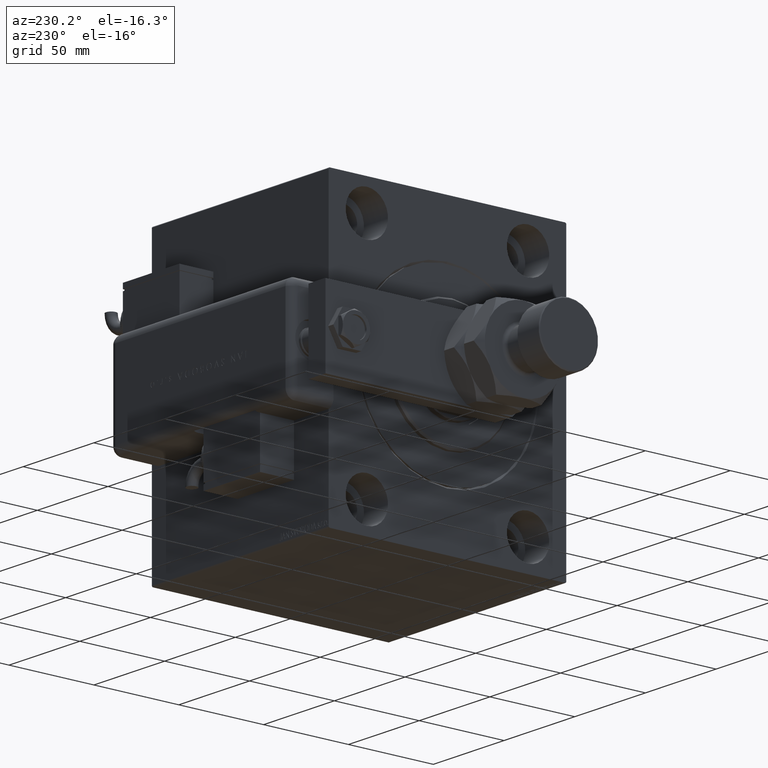
[diagram: clean part render]
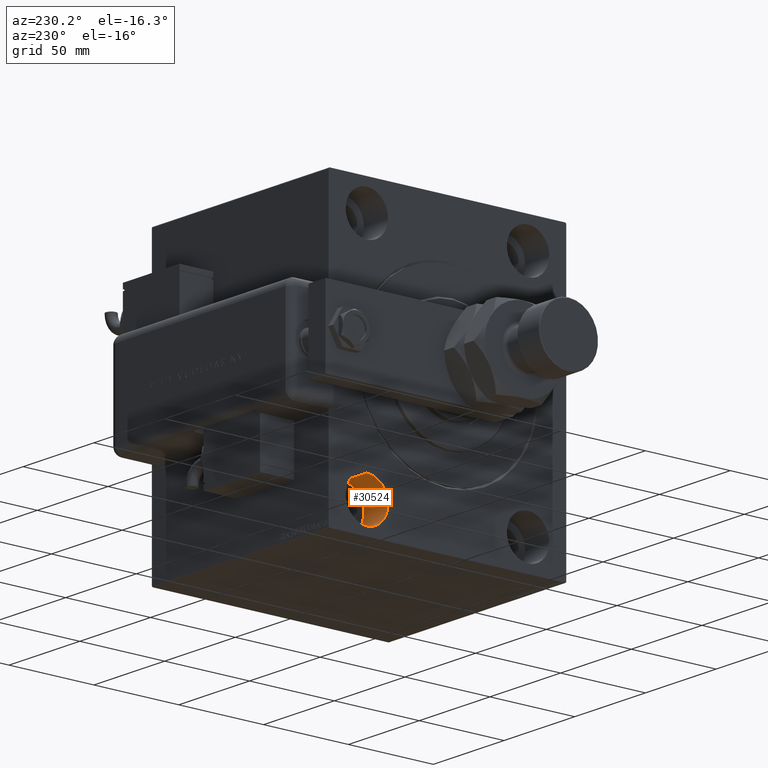
[diagram: same view with one face highlighted and labeled with its STEP entity id]
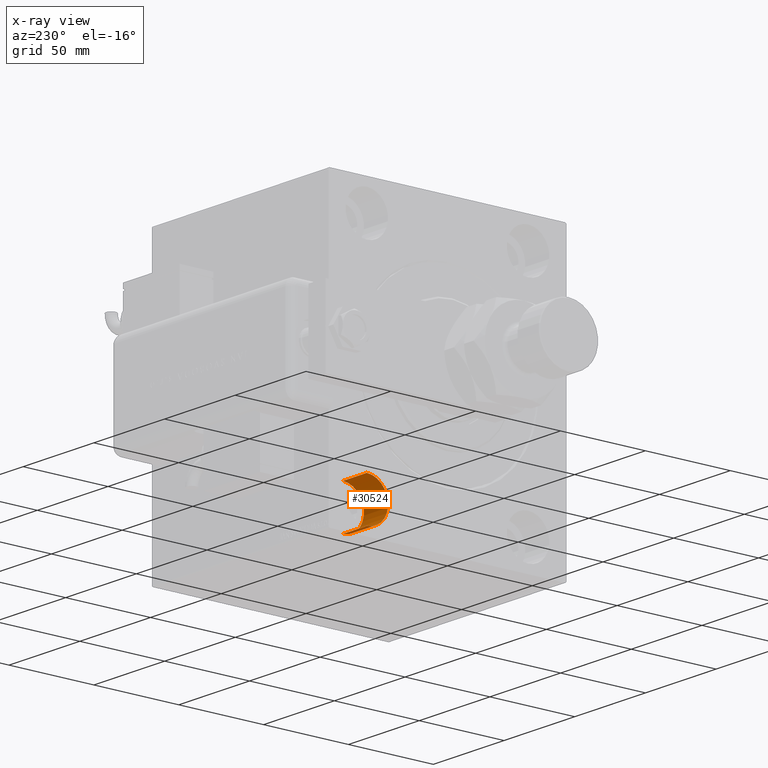
[diagram: x-ray of the same camera — body ghosted, the highlighted face saturated]
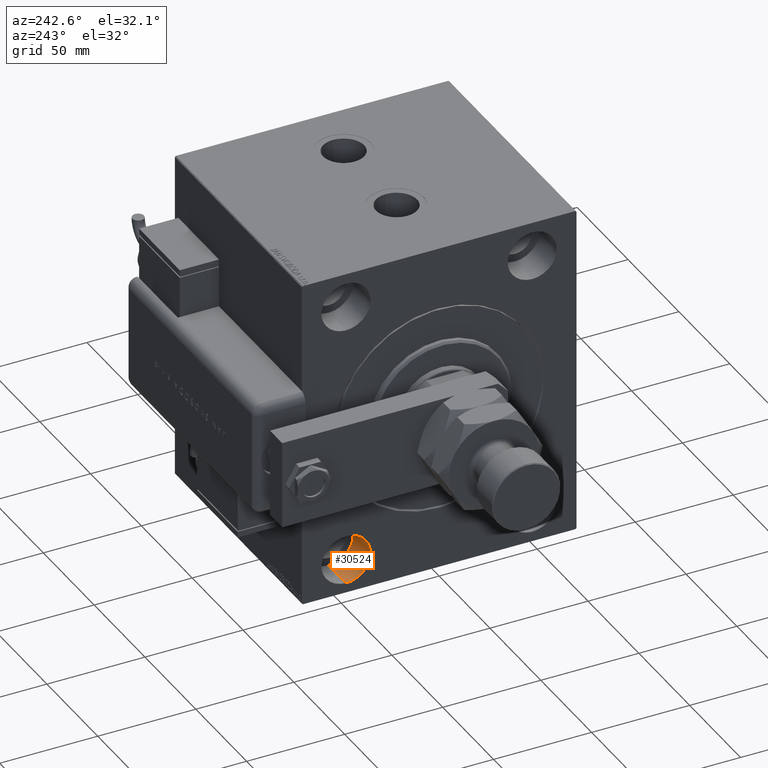
[diagram: same view with one face highlighted and labeled with its STEP entity id]
A machine part, auxiliary view. The second image highlights one B-rep face of the part: STEP entity #30524.
The next image is the same camera in x-ray: the body ghosted, the highlighted face saturated — about 0% of this face is hidden behind the body in this view.
A second angle (auxiliary view) of the same face is appended — the face is thin or edge-on in the first view.
In plain terms, the highlighted cylindrical surface (edge-blend (fillet) strip) has radius 12.5 mm, axis along (-1, -0, -0).
Its self-contained STEP definition (entity closure, byte-faithful):
#3874 = VECTOR ( 'NONE', #47175, 1000.000000000000000 ) ;
#3987 = CARTESIAN_POINT ( 'NONE',  ( 0.000000000000000000, 47.50000000000000711, -55.00000000000000711 ) ) ;
#5238 = DIRECTION ( 'NONE',  ( 0.000000000000000000, 0.000000000000000000, 1.000000000000000000 ) ) ;
#7004 = EDGE_CURVE ( 'NONE', #37507, #14570, #45164, .T. ) ;
#9866 = CIRCLE ( 'NONE', #30758, 12.49999999999999645 ) ;
#9935 = CARTESIAN_POINT ( 'NONE',  ( 0.000000000000000000, 47.50000000000000711, -80.00000000000000000 ) ) ;
#14570 = VERTEX_POINT ( 'NONE', #9935 ) ;
#15441 = EDGE_CURVE ( 'NONE', #14570, #20549, #22350, .T. ) ;
#15969 = EDGE_LOOP ( 'NONE', ( #23206, #50213, #17999, #33009 ) ) ;
#17429 = DIRECTION ( 'NONE',  ( 0.000000000000000000, 0.000000000000000000, 1.000000000000000000 ) ) ;
#17999 = ORIENTED_EDGE ( 'NONE', *, *, #15441, .T. ) ;
#20263 = FACE_OUTER_BOUND ( 'NONE', #15969, .T. ) ;
#20549 = VERTEX_POINT ( 'NONE', #3987 ) ;
#22350 = CIRCLE ( 'NONE', #26303, 12.49999999999999645 ) ;
#22451 = DIRECTION ( 'NONE',  ( -1.000000000000000000, -0.000000000000000000, -0.000000000000000000 ) ) ;
#23206 = ORIENTED_EDGE ( 'NONE', *, *, #27626, .F. ) ;
#23227 = AXIS2_PLACEMENT_3D ( 'NONE', #54740, #36402, #17429 ) ;
#23739 = CARTESIAN_POINT ( 'NONE',  ( 0.000000000000000000, 47.50000000000000711, -67.50000000000000000 ) ) ;
#24494 = LINE ( 'NONE', #56518, #3874 ) ;
#26303 = AXIS2_PLACEMENT_3D ( 'NONE', #23739, #46726, #47665 ) ;
#27626 = EDGE_CURVE ( 'NONE', #37507, #56656, #9866, .T. ) ;
#27849 = EDGE_CURVE ( 'NONE', #56656, #20549, #24494, .T. ) ;
#28593 = CARTESIAN_POINT ( 'NONE',  ( 17.00000000000000000, 47.50000000000000711, -67.50000000000000000 ) ) ;
#28831 = CARTESIAN_POINT ( 'NONE',  ( 17.00000000000000000, 47.50000000000000711, -55.00000000000000711 ) ) ;
#30190 = CYLINDRICAL_SURFACE ( 'NONE', #23227, 12.49999999999999645 ) ;
#30524 = ADVANCED_FACE ( 'NONE', ( #20263 ), #30190, .F. ) ;
#30758 = AXIS2_PLACEMENT_3D ( 'NONE', #28593, #47558, #5238 ) ;
#33009 = ORIENTED_EDGE ( 'NONE', *, *, #27849, .F. ) ;
#36402 = DIRECTION ( 'NONE',  ( -1.000000000000000000, -0.000000000000000000, -0.000000000000000000 ) ) ;
#37507 = VERTEX_POINT ( 'NONE', #56434 ) ;
#41799 = VECTOR ( 'NONE', #22451, 1000.000000000000000 ) ;
#45164 = LINE ( 'NONE', #59493, #41799 ) ;
#46726 = DIRECTION ( 'NONE',  ( -1.000000000000000000, 0.000000000000000000, 0.000000000000000000 ) ) ;
#47175 = DIRECTION ( 'NONE',  ( -1.000000000000000000, -0.000000000000000000, -0.000000000000000000 ) ) ;
#47558 = DIRECTION ( 'NONE',  ( -1.000000000000000000, 0.000000000000000000, 0.000000000000000000 ) ) ;
#47665 = DIRECTION ( 'NONE',  ( 0.000000000000000000, 0.000000000000000000, 1.000000000000000000 ) ) ;
#50213 = ORIENTED_EDGE ( 'NONE', *, *, #7004, .T. ) ;
#54740 = CARTESIAN_POINT ( 'NONE',  ( 17.00000000000000000, 47.50000000000000711, -67.50000000000000000 ) ) ;
#56434 = CARTESIAN_POINT ( 'NONE',  ( 17.00000000000000000, 47.50000000000000711, -80.00000000000000000 ) ) ;
#56518 = CARTESIAN_POINT ( 'NONE',  ( 17.00000000000000000, 47.50000000000000711, -55.00000000000000711 ) ) ;
#56656 = VERTEX_POINT ( 'NONE', #28831 ) ;
#59493 = CARTESIAN_POINT ( 'NONE',  ( 17.00000000000000000, 47.50000000000000711, -80.00000000000000000 ) ) ;